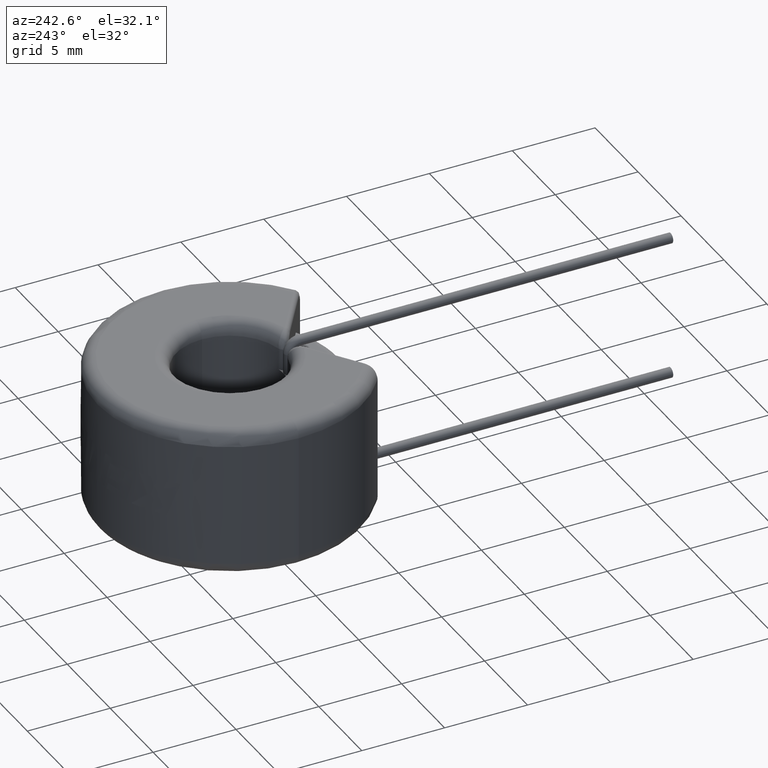
[diagram: clean part render]
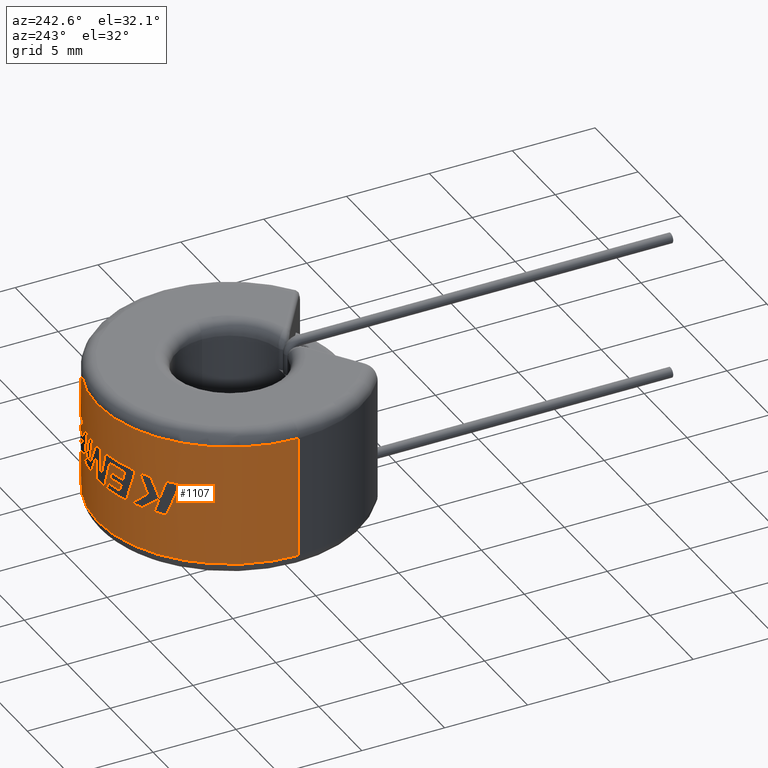
[diagram: same view with one face highlighted and labeled with its STEP entity id]
A machine part, auxiliary view. The second image highlights one B-rep face of the part: STEP entity #1107.
In plain terms, the highlighted cylindrical surface (partial cylindrical patch) has radius 8 mm, axis along (-0, -0, -1).
Its self-contained STEP definition (entity closure, byte-faithful):
#10 = ORIENTED_EDGE ( 'NONE', *, *, #384, .F. ) ;
#18 = B_SPLINE_CURVE_WITH_KNOTS ( 'NONE', 3,
 ( #2323, #1382, #670, #1670 ),
 .UNSPECIFIED., .F., .F.,
 ( 4, 4 ),
 ( 0.0000000000000000000, 1.000000000000000000 ),
 .UNSPECIFIED. ) ;
#27 = CARTESIAN_POINT ( 'NONE',  ( -0.6801237116084023482, 7.976154874691993690, 0.4359918721710264178 ) ) ;
#33 = CARTESIAN_POINT ( 'NONE',  ( -2.064441638046536909, 7.730593953373420923, -0.6643228252256486721 ) ) ;
#38 = B_SPLINE_CURVE_WITH_KNOTS ( 'NONE', 3,
 ( #2255, #2947, #1673, #677 ),
 .UNSPECIFIED., .F., .F.,
 ( 4, 4 ),
 ( 0.0000000000000000000, 1.000000000000000000 ),
 .UNSPECIFIED. ) ;
#45 = CARTESIAN_POINT ( 'NONE',  ( -1.743370544399130528, 7.817880100366698670, -0.6642675176836594364 ) ) ;
#66 = EDGE_CURVE ( 'NONE', #3014, #1181, #3132, .T. ) ;
#70 = CARTESIAN_POINT ( 'NONE',  ( -0.4210256855646497542, 7.990415484656526068, 1.072590236327437108 ) ) ;
#79 = ORIENTED_EDGE ( 'NONE', *, *, #4039, .F. ) ;
#84 = CARTESIAN_POINT ( 'NONE',  ( -0.9712122813385472009, 7.942339008945468848, -1.072616702577573244 ) ) ;
#93 = CARTESIAN_POINT ( 'NONE',  ( -0.4971932119055124111, 7.989644157169951022, -0.2006087033734176850 ) ) ;
#95 = CARTESIAN_POINT ( 'NONE',  ( 1.774497132990443538, 7.802253655266551569, -1.072546175921984979 ) ) ;
#97 = CARTESIAN_POINT ( 'NONE',  ( -2.113192612887222484E-15, 8.001500000000000057, 1.072592447715470465 ) ) ;
#103 = VERTEX_POINT ( 'NONE', #1412 ) ;
#108 = CARTESIAN_POINT ( 'NONE',  ( 0.07371837745155546129, 8.001160406507773715, 0.4599583248682252989 ) ) ;
#129 = CARTESIAN_POINT ( 'NONE',  ( 1.570700067983697767, 7.850138122217452441, -0.3575308159052169588 ) ) ;
#133 = CARTESIAN_POINT ( 'NONE',  ( 0.1508046234949111664, 8.000078763060139764, 1.072598284660388757 ) ) ;
#140 = VERTEX_POINT ( 'NONE', #429 ) ;
#158 = ORIENTED_EDGE ( 'NONE', *, *, #852, .F. ) ;
#161 = CARTESIAN_POINT ( 'NONE',  ( 2.407951547526586022, 7.630581331334950868, -0.2651256466329067196 ) ) ;
#173 = CARTESIAN_POINT ( 'NONE',  ( 0.0000000000000000000, 0.0000000000000000000, -3.699999999999999289 ) ) ;
#189 = CARTESIAN_POINT ( 'NONE',  ( -3.368712888853397924, 7.260722665219213390, -1.072592447715352559 ) ) ;
#190 = ORIENTED_EDGE ( 'NONE', *, *, #1081, .T. ) ;
#201 = CARTESIAN_POINT ( 'NONE',  ( -2.293664122963854357, 7.665709817981610996, 0.1312463116441359712 ) ) ;
#207 = ORIENTED_EDGE ( 'NONE', *, *, #2719, .F. ) ;
#219 = CARTESIAN_POINT ( 'NONE',  ( 0.8337195419124950879, 7.957946592152596921, -1.072561070023339891 ) ) ;
#220 = CARTESIAN_POINT ( 'NONE',  ( 2.860370958073259029, 7.482760784891382855, -0.6632738994053052339 ) ) ;
#229 = CARTESIAN_POINT ( 'NONE',  ( -5.476237842978441961, 5.833936940286556627, 1.072352097121872294 ) ) ;
#234 = B_SPLINE_CURVE_WITH_KNOTS ( 'NONE', 3,
 ( #1598, #2931, #3254, #1322 ),
 .UNSPECIFIED., .F., .F.,
 ( 4, 4 ),
 ( 0.0000000000000000000, 1.000000000000000000 ),
 .UNSPECIFIED. ) ;
#253 = VERTEX_POINT ( 'NONE', #3048 ) ;
#255 = B_SPLINE_CURVE_WITH_KNOTS ( 'NONE', 3,
 ( #3075, #3392, #2761, #2119 ),
 .UNSPECIFIED., .F., .F.,
 ( 4, 4 ),
 ( 0.0000000000000000000, 1.000000000000000000 ),
 .UNSPECIFIED. ) ;
#260 = ORIENTED_EDGE ( 'NONE', *, *, #1544, .F. ) ;
#268 = B_SPLINE_CURVE_WITH_KNOTS ( 'NONE', 3,
 ( #2307, #2275, #2609, #1065 ),
 .UNSPECIFIED., .F., .F.,
 ( 4, 4 ),
 ( 0.0000000000000000000, 1.000000000000000000 ),
 .UNSPECIFIED. ) ;
#283 = FACE_BOUND ( 'NONE', #1495, .T. ) ;
#286 = B_SPLINE_CURVE_WITH_KNOTS ( 'NONE', 3,
 ( #3537, #3828, #1277, #597 ),
 .UNSPECIFIED., .F., .F.,
 ( 4, 4 ),
 ( 0.0000000000000000000, 1.000000000000000000 ),
 .UNSPECIFIED. ) ;
#302 = ORIENTED_EDGE ( 'NONE', *, *, #4208, .F. ) ;
#312 = CARTESIAN_POINT ( 'NONE',  ( 3.029596591651236626, 7.414701497711397415, -0.2651917170684963132 ) ) ;
#316 = B_SPLINE_CURVE_WITH_KNOTS ( 'NONE', 3,
 ( #2537, #740, #4064, #2019 ),
 .UNSPECIFIED., .F., .F.,
 ( 4, 4 ),
 ( 0.0000000000000000000, 1.000000000000000000 ),
 .UNSPECIFIED. ) ;
#322 = CARTESIAN_POINT ( 'NONE',  ( -2.180533039818360663, 7.698654284913418522, -0.2653223298650653761 ) ) ;
#340 = CARTESIAN_POINT ( 'NONE',  ( 2.524063211080216806, 7.592964307171568450, -0.6641964339651863503 ) ) ;
#352 = B_SPLINE_CURVE_WITH_KNOTS ( 'NONE', 3,
 ( #2503, #3184, #1242, #1909 ),
 .UNSPECIFIED., .F., .F.,
 ( 4, 4 ),
 ( 0.0000000000000000000, 1.000000000000000000 ),
 .UNSPECIFIED. ) ;
#355 = CARTESIAN_POINT ( 'NONE',  ( -3.895260686644414605, 6.989345184696227342, -0.09222926475559270476 ) ) ;
#356 = CARTESIAN_POINT ( 'NONE',  ( -3.412356151512896396, 7.237390931060383892, 1.072726381455791023 ) ) ;
#366 = EDGE_CURVE ( 'NONE', #2612, #2047, #2506, .T. ) ;
#369 = CARTESIAN_POINT ( 'NONE',  ( 3.661449620607466482, 7.114617948942053793, 1.072705474585700536 ) ) ;
#376 = CARTESIAN_POINT ( 'NONE',  ( 2.721953484520333699, 7.533075270858247130, -0.2651917170684963132 ) ) ;
#378 = VERTEX_POINT ( 'NONE', #3779 ) ;
#382 = CARTESIAN_POINT ( 'NONE',  ( 2.486882010572831980, 7.615176470977394807, 0.6643914481921986415 ) ) ;
#384 = EDGE_CURVE ( 'NONE', #447, #1501, #3510, .T. ) ;
#397 = CARTESIAN_POINT ( 'NONE',  ( 3.730090888569194796, 7.084902461825878461, -0.6604191493042311789 ) ) ;
#400 = VERTEX_POINT ( 'NONE', #3536 ) ;
#403 = EDGE_CURVE ( 'NONE', #772, #3248, #3444, .T. ) ;
#406 = CARTESIAN_POINT ( 'NONE',  ( 2.824486904824376587, 7.496517094165404238, 0.6643914481921986415 ) ) ;
#421 = CARTESIAN_POINT ( 'NONE',  ( 4.973677091792798599, 6.274919447855855203, -0.6583815827780724605 ) ) ;
#429 = CARTESIAN_POINT ( 'NONE',  ( 3.328479441635595837, 7.276347057656356476, -0.2651917170684963132 ) ) ;
#436 = CARTESIAN_POINT ( 'NONE',  ( -5.282287338500848861, 6.018025177417220206, 1.072592447715470465 ) ) ;
#447 = VERTEX_POINT ( 'NONE', #340 ) ;
#451 = CARTESIAN_POINT ( 'NONE',  ( -5.476237842978441961, 5.833936940286556627, 1.072352097121872294 ) ) ;
#452 = ORIENTED_EDGE ( 'NONE', *, *, #1834, .F. ) ;
#479 = CARTESIAN_POINT ( 'NONE',  ( -0.4210256855646497542, 7.990415484656526068, 1.072590236327437108 ) ) ;
#481 = CARTESIAN_POINT ( 'NONE',  ( 0.05027692271271197444, 8.003000000000000114, 1.072592447715470465 ) ) ;
#485 = CARTESIAN_POINT ( 'NONE',  ( -5.078706757574605213, 6.191147021517003246, -0.3127150373445109488 ) ) ;
#517 = EDGE_CURVE ( 'NONE', #3916, #1444, #1256, .T. ) ;
#519 = DIRECTION ( 'NONE',  ( 1.000000000000000000, 0.0000000000000000000, 0.0000000000000000000 ) ) ;
#525 = CARTESIAN_POINT ( 'NONE',  ( -5.078617509342840286, 6.190866720929331102, 1.072592447715470465 ) ) ;
#529 = CARTESIAN_POINT ( 'NONE',  ( 5.476306915583020185, 5.833872069990692744, -1.072592447715462693 ) ) ;
#540 = B_SPLINE_CURVE_WITH_KNOTS ( 'NONE', 3,
 ( #3466, #2834, #1948, #4193 ),
 .UNSPECIFIED., .F., .F.,
 ( 4, 4 ),
 ( 0.0000000000000000000, 1.000000000000000000 ),
 .UNSPECIFIED. ) ;
#543 = CARTESIAN_POINT ( 'NONE',  ( -1.373149902420378821, 7.882795287961448238, 0.1312726931427832811 ) ) ;
#550 = ORIENTED_EDGE ( 'NONE', *, *, #4149, .F. ) ;
#555 = CARTESIAN_POINT ( 'NONE',  ( -1.297818128279534688, 7.897160402460872142, -0.1330730997002278759 ) ) ;
#563 = DIRECTION ( 'NONE',  ( 1.000000000000000000, 0.0000000000000000000, 0.0000000000000000000 ) ) ;
#565 = ORIENTED_EDGE ( 'NONE', *, *, #1203, .F. ) ;
#568 = B_SPLINE_CURVE_WITH_KNOTS ( 'NONE', 3,
 ( #1878, #1205, #2467, #3468 ),
 .UNSPECIFIED., .F., .F.,
 ( 4, 4 ),
 ( 0.0000000000000000000, 1.000000000000000000 ),
 .UNSPECIFIED. ) ;
#572 = CARTESIAN_POINT ( 'NONE',  ( -2.344688477282884431, 7.652009911330433845, 0.3090283290455112519 ) ) ;
#585 = B_SPLINE_CURVE_WITH_KNOTS ( 'NONE', 3,
 ( #3566, #2615, #3581, #1656 ),
 .UNSPECIFIED., .F., .F.,
 ( 4, 4 ),
 ( 0.0000000000000000000, 1.000000000000000000 ),
 .UNSPECIFIED. ) ;
#595 = CARTESIAN_POINT ( 'NONE',  ( -2.555841134051170194, 7.582326700080542103, -1.072662743710084632 ) ) ;
#597 = CARTESIAN_POINT ( 'NONE',  ( -1.256510396775138982, 7.902226511340423087, 0.6644377228276618919 ) ) ;
#598 = CARTESIAN_POINT ( 'NONE',  ( 1.163836292435297848, 7.916406211074641597, -0.8463309253471541505 ) ) ;
#613 = CARTESIAN_POINT ( 'NONE',  ( -2.772511723701645447, 7.510881552932747063, -0.3205386220524558682 ) ) ;
#619 = ORIENTED_EDGE ( 'NONE', *, *, #3005, .F. ) ;
#624 = ORIENTED_EDGE ( 'NONE', *, *, #1752, .F. ) ;
#631 = CARTESIAN_POINT ( 'NONE',  ( -3.895260686644414605, 6.989345184696227342, -0.09222926475559270476 ) ) ;
#646 = EDGE_CURVE ( 'NONE', #1137, #1922, #4106, .T. ) ;
#653 = CARTESIAN_POINT ( 'NONE',  ( -2.445561227911127400, 7.618610922212548431, 0.6644035914972871160 ) ) ;
#654 = VERTEX_POINT ( 'NONE', #2378 ) ;
#663 = VERTEX_POINT ( 'NONE', #3754 ) ;
#670 = CARTESIAN_POINT ( 'NONE',  ( -3.737468001689347563, 7.078989097120000018, 0.2960743297346108971 ) ) ;
#672 = B_SPLINE_CURVE_WITH_KNOTS ( 'NONE', 3,
 ( #595, #613, #2695, #848 ),
 .UNSPECIFIED., .F., .F.,
 ( 4, 4 ),
 ( 0.0000000000000000000, 1.000000000000000000 ),
 .UNSPECIFIED. ) ;
#676 = CARTESIAN_POINT ( 'NONE',  ( 0.8337195419124950879, 7.957946592152596921, -1.072561070023339891 ) ) ;
#677 = CARTESIAN_POINT ( 'NONE',  ( -4.064991875553961798, 6.892012979195994760, 1.072761833733665515 ) ) ;
#679 = CARTESIAN_POINT ( 'NONE',  ( -0.8622882428212039763, 7.954901710228647005, 1.072570777087549887 ) ) ;
#688 = CARTESIAN_POINT ( 'NONE',  ( 0.05205626573263418683, 8.000000000000000000, -1.072592447715506880 ) ) ;
#701 = B_SPLINE_CURVE_WITH_KNOTS ( 'NONE', 3,
 ( #2738, #189, #2182, #2474 ),
 .UNSPECIFIED., .F., .F.,
 ( 4, 4 ),
 ( 0.0000000000000000000, 1.000000000000000000 ),
 .UNSPECIFIED. ) ;
#702 = DIRECTION ( 'NONE',  ( -0.0000000000000000000, -0.0000000000000000000, -1.000000000000000000 ) ) ;
#713 = ORIENTED_EDGE ( 'NONE', *, *, #2475, .F. ) ;
#719 = CARTESIAN_POINT ( 'NONE',  ( 5.169748173391445434, 6.114391360897657002, -0.6583660403194177002 ) ) ;
#722 = VERTEX_POINT ( 'NONE', #201 ) ;
#736 = CARTESIAN_POINT ( 'NONE',  ( 3.292760849809325041, 7.320968663726097780, -1.072592447715432273 ) ) ;
#740 = CARTESIAN_POINT ( 'NONE',  ( 1.970959931675963395, 7.776963484191568021, 1.072592447715470465 ) ) ;
#741 = FACE_BOUND ( 'NONE', #785, .T. ) ;
#767 = ORIENTED_EDGE ( 'NONE', *, *, #3126, .F. ) ;
#771 = EDGE_LOOP ( 'NONE', ( #452, #1082, #1912, #1224, #3117, #2795, #2709, #3353, #3359, #158, #767 ) ) ;
#772 = VERTEX_POINT ( 'NONE', #1165 ) ;
#785 = EDGE_LOOP ( 'NONE', ( #1086, #2280, #2743, #3871, #10, #2101, #3351, #2687, #2660, #2057, #879, #260, #3555, #624, #938, #2662, #619 ) ) ;
#787 = CARTESIAN_POINT ( 'NONE',  ( -2.064441638046536909, 7.730593953373420923, -0.6643228252256486721 ) ) ;
#819 = VERTEX_POINT ( 'NONE', #229 ) ;
#823 = CARTESIAN_POINT ( 'NONE',  ( 2.485695010576913777, 7.607298094260091403, -0.5311944179830225821 ) ) ;
#827 = VERTEX_POINT ( 'NONE', #2561 ) ;
#838 = B_SPLINE_CURVE_WITH_KNOTS ( 'NONE', 3,
 ( #1156, #3024, #2715, #1380 ),
 .UNSPECIFIED., .F., .F.,
 ( 4, 4 ),
 ( 0.0000000000000000000, 1.000000000000000000 ),
 .UNSPECIFIED. ) ;
#848 = CARTESIAN_POINT ( 'NONE',  ( -3.173074754855873980, 7.345447473708527575, 1.072499958012197885 ) ) ;
#852 = EDGE_CURVE ( 'NONE', #2855, #3093, #234, .T. ) ;
#858 = CARTESIAN_POINT ( 'NONE',  ( -4.511451079463641989, 6.608389428695683243, -0.1582128591891508451 ) ) ;
#879 = ORIENTED_EDGE ( 'NONE', *, *, #517, .F. ) ;
#886 = EDGE_CURVE ( 'NONE', #3881, #2354, #2534, .T. ) ;
#898 = CARTESIAN_POINT ( 'NONE',  ( 0.6127338063971743409, 7.978004733265696480, 1.072607765960916115 ) ) ;
#900 = CARTESIAN_POINT ( 'NONE',  ( 1.623450805039152067, 7.839439138227093373, 0.3575308159051316381 ) ) ;
#920 = CARTESIAN_POINT ( 'NONE',  ( -2.893682706992777742, 7.459933149083743942, -1.072737299245327902 ) ) ;
#922 = CARTESIAN_POINT ( 'NONE',  ( 1.157803312104688676, 7.917290806190581343, 1.072621833848927952 ) ) ;
#925 = CARTESIAN_POINT ( 'NONE',  ( 1.163836292435297848, 7.916406211074641597, -0.8463309253471541505 ) ) ;
#934 = ORIENTED_EDGE ( 'NONE', *, *, #1340, .T. ) ;
#938 = ORIENTED_EDGE ( 'NONE', *, *, #3263, .T. ) ;
#962 = VERTEX_POINT ( 'NONE', #4113 ) ;
#977 = B_SPLINE_CURVE_WITH_KNOTS ( 'NONE', 3,
 ( #3620, #2653, #3636, #3939 ),
 .UNSPECIFIED., .F., .F.,
 ( 4, 4 ),
 ( 0.0000000000000000000, 1.000000000000000000 ),
 .UNSPECIFIED. ) ;
#989 = ORIENTED_EDGE ( 'NONE', *, *, #3997, .F. ) ;
#1005 = B_SPLINE_CURVE_WITH_KNOTS ( 'NONE', 3,
 ( #479, #4066, #3770, #3389 ),
 .UNSPECIFIED., .F., .F.,
 ( 4, 4 ),
 ( 0.0000000000000000000, 0.7363515796571900029 ),
 .UNSPECIFIED. ) ;
#1011 = CARTESIAN_POINT ( 'NONE',  ( -4.511451079463641989, 6.608389428695683243, -0.1582128591891508451 ) ) ;
#1026 = CARTESIAN_POINT ( 'NONE',  ( 3.507013961814958947, 7.191999368766832212, -0.6614316899622286750 ) ) ;
#1034 = B_SPLINE_CURVE_WITH_KNOTS ( 'NONE', 3,
 ( #4205, #3231, #1298, #322 ),
 .UNSPECIFIED., .F., .F.,
 ( 4, 4 ),
 ( 0.0000000000000000000, 1.000000000000000000 ),
 .UNSPECIFIED. ) ;
#1051 = CARTESIAN_POINT ( 'NONE',  ( 4.452119497614524413, 6.679632337805506914, -1.072592447715432273 ) ) ;
#1058 = CARTESIAN_POINT ( 'NONE',  ( 3.215492179340174062, 7.326978360630375775, 0.1314012205837849223 ) ) ;
#1061 = ORIENTED_EDGE ( 'NONE', *, *, #3761, .F. ) ;
#1065 = CARTESIAN_POINT ( 'NONE',  ( 0.6127338063971743409, 7.978004733265696480, 1.072607765960916115 ) ) ;
#1067 = CARTESIAN_POINT ( 'NONE',  ( 4.991727824941910363, 6.286613516910136923, -1.072592447715432273 ) ) ;
#1072 = CARTESIAN_POINT ( 'NONE',  ( 1.157803312104688676, 7.917290806190581343, 1.072621833848927952 ) ) ;
#1081 = EDGE_CURVE ( 'NONE', #1324, #663, #2273, .T. ) ;
#1082 = ORIENTED_EDGE ( 'NONE', *, *, #1101, .T. ) ;
#1086 = ORIENTED_EDGE ( 'NONE', *, *, #2882, .F. ) ;
#1093 = CARTESIAN_POINT ( 'NONE',  ( -0.3853934973680183673, 7.993794897276850442, 0.4359918721710193679 ) ) ;
#1101 = EDGE_CURVE ( 'NONE', #103, #4217, #540, .T. ) ;
#1107 = ADVANCED_FACE ( 'NONE', ( #2725, #283, #741, #1409 ), #1316, .T. ) ;
#1116 = CARTESIAN_POINT ( 'NONE',  ( 2.915994245259669437, 7.460024991791626370, 0.1313076335298329622 ) ) ;
#1131 = VERTEX_POINT ( 'NONE', #922 ) ;
#1137 = VERTEX_POINT ( 'NONE', #1253 ) ;
#1156 = CARTESIAN_POINT ( 'NONE',  ( 0.6127338063971743409, 7.978004733265696480, 1.072607765960916115 ) ) ;
#1161 = EDGE_CURVE ( 'NONE', #1501, #1438, #1863, .T. ) ;
#1165 = CARTESIAN_POINT ( 'NONE',  ( -1.087173427263111058, 7.927298162801107217, -0.6642947640332093062 ) ) ;
#1166 = CARTESIAN_POINT ( 'NONE',  ( -0.2527305113524106472, 8.000000000000000000, -1.072592447715506880 ) ) ;
#1181 = VERTEX_POINT ( 'NONE', #3778 ) ;
#1188 = CARTESIAN_POINT ( 'NONE',  ( 2.032911500267610361, 7.738945211318130291, -1.072538615776349014 ) ) ;
#1202 = CARTESIAN_POINT ( 'NONE',  ( -3.255128284551146667, 7.321345398681610384, -0.7191471995214996360 ) ) ;
#1203 = EDGE_CURVE ( 'NONE', #3208, #3405, #3479, .T. ) ;
#1205 = CARTESIAN_POINT ( 'NONE',  ( 5.397823638726764628, 5.908842161643588220, -0.7964311478123297094 ) ) ;
#1210 = CARTESIAN_POINT ( 'NONE',  ( -2.555841134051170194, 7.582326700080542103, -1.072662743710084632 ) ) ;
#1214 = CARTESIAN_POINT ( 'NONE',  ( 0.3275784478912423525, 8.000321934888759756, -0.05089401335543937421 ) ) ;
#1215 = EDGE_CURVE ( 'NONE', #2354, #3345, #4168, .T. ) ;
#1224 = ORIENTED_EDGE ( 'NONE', *, *, #1502, .F. ) ;
#1235 = CARTESIAN_POINT ( 'NONE',  ( -2.041100581969992334, 7.754235321830279304, -1.072592447715485120 ) ) ;
#1242 = CARTESIAN_POINT ( 'NONE',  ( -4.338039743121873570, 6.726093363118090807, -0.7676625222797507364 ) ) ;
#1253 = CARTESIAN_POINT ( 'NONE',  ( -2.180533039818360663, 7.698654284913418522, -0.2653223298650653761 ) ) ;
#1256 = B_SPLINE_CURVE_WITH_KNOTS ( 'NONE', 3,
 ( #3000, #406, #382, #1389 ),
 .UNSPECIFIED., .F., .F.,
 ( 4, 4 ),
 ( 0.0000000000000000000, 1.000000000000000000 ),
 .UNSPECIFIED. ) ;
#1271 = CARTESIAN_POINT ( 'NONE',  ( 4.272865543308272507, 6.765103213330429632, 1.072736843435582177 ) ) ;
#1273 = VERTEX_POINT ( 'NONE', #3249 ) ;
#1277 = CARTESIAN_POINT ( 'NONE',  ( -1.090924302169648197, 7.930072393146923027, 0.08544899748538976880 ) ) ;
#1279 = B_SPLINE_CURVE_WITH_KNOTS ( 'NONE', 3,
 ( #1188, #3112, #900, #1593 ),
 .UNSPECIFIED., .F., .F.,
 ( 4, 4 ),
 ( 0.0000000000000000000, 1.000000000000000000 ),
 .UNSPECIFIED. ) ;
#1298 = CARTESIAN_POINT ( 'NONE',  ( -1.878186254511453601, 7.785840722944312731, -0.2652634663130049031 ) ) ;
#1312 = B_SPLINE_CURVE_WITH_KNOTS ( 'NONE', 3,
 ( #33, #45, #3335, #2417 ),
 .UNSPECIFIED., .F., .F.,
 ( 4, 4 ),
 ( 0.0000000000000000000, 1.000000000000000000 ),
 .UNSPECIFIED. ) ;
#1316 = CYLINDRICAL_SURFACE ( 'NONE', #1408, 8.000000000000000000 ) ;
#1322 = CARTESIAN_POINT ( 'NONE',  ( -4.532851134413411920, 6.593728995872968568, -0.09214177772560618040 ) ) ;
#1323 = CARTESIAN_POINT ( 'NONE',  ( 4.159464431272449580, 6.835411994908524136, -0.6582591171889911053 ) ) ;
#1324 = VERTEX_POINT ( 'NONE', #2621 ) ;
#1333 = ORIENTED_EDGE ( 'NONE', *, *, #66, .F. ) ;
#1340 = EDGE_CURVE ( 'NONE', #3804, #3645, #3806, .T. ) ;
#1355 = CARTESIAN_POINT ( 'NONE',  ( 3.947790748144502704, 6.965943521120307125, -0.6594081372731369628 ) ) ;
#1356 = CARTESIAN_POINT ( 'NONE',  ( 3.507013961814958947, 7.191999368766832212, -0.6614316899622286750 ) ) ;
#1376 = EDGE_CURVE ( 'NONE', #722, #2656, #2854, .T. ) ;
#1380 = CARTESIAN_POINT ( 'NONE',  ( 1.157803312104688676, 7.917290806190581343, 1.072621833848927952 ) ) ;
#1382 = CARTESIAN_POINT ( 'NONE',  ( -3.576408852467553690, 7.161707437531032561, 0.6843333887250429015 ) ) ;
#1389 = CARTESIAN_POINT ( 'NONE',  ( 2.142650734834194104, 7.709283362826103492, 0.6644482304444168097 ) ) ;
#1408 = AXIS2_PLACEMENT_3D ( 'NONE', #2224, #3553, #2567 ) ;
#1409 = FACE_OUTER_BOUND ( 'NONE', #2281, .T. ) ;
#1412 = CARTESIAN_POINT ( 'NONE',  ( -4.859822900790925715, 6.356581066237645850, -1.072775976785200314 ) ) ;
#1430 = EDGE_CURVE ( 'NONE', #1704, #1744, #568, .T. ) ;
#1434 = CARTESIAN_POINT ( 'NONE',  ( 3.291165848882553036, 7.295063276019087439, -0.1330252668690571072 ) ) ;
#1437 = ORIENTED_EDGE ( 'NONE', *, *, #2633, .T. ) ;
#1438 = VERTEX_POINT ( 'NONE', #1514 ) ;
#1444 = VERTEX_POINT ( 'NONE', #1833 ) ;
#1449 = CARTESIAN_POINT ( 'NONE',  ( 3.328479441635595837, 7.276347057656356476, -0.2651917170684963132 ) ) ;
#1488 = CARTESIAN_POINT ( 'NONE',  ( -1.259888897926941143, 7.901688565005892784, -0.2652953831288911712 ) ) ;
#1495 = EDGE_LOOP ( 'NONE', ( #565, #2921, #3907, #302, #3864, #2388, #2941, #2970, #1333, #2410, #2195, #3595, #2252, #3301, #207, #2181, #1061, #3258, #3056, #79, #713, #989, #934, #2436, #3670 ) ) ;
#1501 = VERTEX_POINT ( 'NONE', #1356 ) ;
#1502 = EDGE_CURVE ( 'NONE', #3665, #3956, #3185, .T. ) ;
#1508 = CARTESIAN_POINT ( 'NONE',  ( -1.335576918507004995, 7.890862349010929755, -0.0008827330874449789040 ) ) ;
#1514 = CARTESIAN_POINT ( 'NONE',  ( 4.159464431272449580, 6.835411994908524136, -0.6582591171889911053 ) ) ;
#1533 = CARTESIAN_POINT ( 'NONE',  ( -1.509390639620157071, 7.875023613238607112, -1.072592447715485120 ) ) ;
#1544 = EDGE_CURVE ( 'NONE', #962, #3916, #3838, .T. ) ;
#1553 = VERTEX_POINT ( 'NONE', #653 ) ;
#1576 = EDGE_CURVE ( 'NONE', #3345, #3459, #268, .T. ) ;
#1582 = B_SPLINE_CURVE_WITH_KNOTS ( 'NONE', 3,
 ( #2628, #3568, #3242, #369 ),
 .UNSPECIFIED., .F., .F.,
 ( 4, 4 ),
 ( 0.0000000000000000000, 1.000000000000000000 ),
 .UNSPECIFIED. ) ;
#1593 = CARTESIAN_POINT ( 'NONE',  ( 1.415943937716766188, 7.875220947309045982, 1.072628754729407774 ) ) ;
#1598 = CARTESIAN_POINT ( 'NONE',  ( -4.866318965182607315, 6.351609339676220323, 1.072408793068455379 ) ) ;
#1603 = EDGE_CURVE ( 'NONE', #3665, #2047, #701, .T. ) ;
#1621 = CARTESIAN_POINT ( 'NONE',  ( 3.036812739355210677, 7.402821778748253756, 1.072678703455610894 ) ) ;
#1629 = CARTESIAN_POINT ( 'NONE',  ( 0.1041125313392672613, 7.999491886090027037, -1.072592447715506880 ) ) ;
#1638 = CARTESIAN_POINT ( 'NONE',  ( -3.173074754855873980, 7.345447473708527575, 1.072499958012197885 ) ) ;
#1639 = B_SPLINE_CURVE_WITH_KNOTS ( 'NONE', 3,
 ( #1904, #3533, #2915, #3847 ),
 .UNSPECIFIED., .F., .F.,
 ( 4, 4 ),
 ( 0.0000000000000000000, 1.000000000000000000 ),
 .UNSPECIFIED. ) ;
#1644 = CARTESIAN_POINT ( 'NONE',  ( 5.357708777453840554, 5.942975457822458729, -0.6581228434418439077 ) ) ;
#1651 = DIRECTION ( 'NONE',  ( -0.0000000000000000000, -0.0000000000000000000, -1.000000000000000000 ) ) ;
#1656 = CARTESIAN_POINT ( 'NONE',  ( 2.294839345715621093, 7.665358078791731700, 0.1313076335298328512 ) ) ;
#1662 = CARTESIAN_POINT ( 'NONE',  ( -4.859822900790925715, 6.356581066237645850, -1.072775976785200314 ) ) ;
#1664 = CARTESIAN_POINT ( 'NONE',  ( -3.599537740570145861, 7.146140931948095520, -1.072780200198578893 ) ) ;
#1670 = CARTESIAN_POINT ( 'NONE',  ( -3.895260686644414605, 6.989345184696227342, -0.09222926475559270476 ) ) ;
#1673 = CARTESIAN_POINT ( 'NONE',  ( -4.227551312311603304, 6.797884889589320245, 0.6687264320548423902 ) ) ;
#1701 = EDGE_CURVE ( 'NONE', #1438, #1733, #1582, .T. ) ;
#1704 = VERTEX_POINT ( 'NONE', #1644 ) ;
#1709 = CARTESIAN_POINT ( 'NONE',  ( 1.463972212756161184, 7.871332858038870839, -1.072592447715529307 ) ) ;
#1717 = CARTESIAN_POINT ( 'NONE',  ( 2.673083906264648757, 7.569245577953290116, -1.072592447715432051 ) ) ;
#1733 = VERTEX_POINT ( 'NONE', #2773 ) ;
#1744 = VERTEX_POINT ( 'NONE', #529 ) ;
#1752 = EDGE_CURVE ( 'NONE', #378, #3813, #1279, .T. ) ;
#1790 = CARTESIAN_POINT ( 'NONE',  ( -2.142134259533186036, 7.711088183361892945, -0.3982648167699028852 ) ) ;
#1814 = CARTESIAN_POINT ( 'NONE',  ( 2.524063211080216806, 7.592964307171568450, -0.6641964339651863503 ) ) ;
#1833 = CARTESIAN_POINT ( 'NONE',  ( 2.142650734834194104, 7.709283362826103492, 0.6644482304444168097 ) ) ;
#1834 = EDGE_CURVE ( 'NONE', #103, #819, #1993, .T. ) ;
#1843 = CARTESIAN_POINT ( 'NONE',  ( -3.588940541360326808, 7.161752953428407231, -0.3923446267016335032 ) ) ;
#1863 = B_SPLINE_CURVE_WITH_KNOTS ( 'NONE', 3,
 ( #3517, #397, #1355, #1323 ),
 .UNSPECIFIED., .F., .F.,
 ( 4, 4 ),
 ( 0.0000000000000000000, 1.000000000000000000 ),
 .UNSPECIFIED. ) ;
#1878 = CARTESIAN_POINT ( 'NONE',  ( 5.357708777453840554, 5.942975457822458729, -0.6581228434418439077 ) ) ;
#1904 = CARTESIAN_POINT ( 'NONE',  ( 4.272865543308272507, 6.765103213330429632, 1.072736843435582177 ) ) ;
#1909 = CARTESIAN_POINT ( 'NONE',  ( -4.249084159012854300, 6.780065303960141954, -1.072735186844663291 ) ) ;
#1912 = ORIENTED_EDGE ( 'NONE', *, *, #3481, .F. ) ;
#1922 = VERTEX_POINT ( 'NONE', #3274 ) ;
#1925 = CARTESIAN_POINT ( 'NONE',  ( 3.215492179340174062, 7.326978360630375775, 0.1314012205837849223 ) ) ;
#1928 = CARTESIAN_POINT ( 'NONE',  ( -2.293664122963854357, 7.665709817981610996, 0.1312463116441359712 ) ) ;
#1930 = CARTESIAN_POINT ( 'NONE',  ( -1.991663625187441555, 7.757628894122412966, 0.1313076335253294258 ) ) ;
#1947 = CARTESIAN_POINT ( 'NONE',  ( -4.532851134413411920, 6.593728995872968568, -0.09214177772560618040 ) ) ;
#1948 = CARTESIAN_POINT ( 'NONE',  ( -4.457864975913431671, 6.647467044891716803, -1.072592447715418285 ) ) ;
#1949 = CARTESIAN_POINT ( 'NONE',  ( -2.439283676930350087, 7.664031251276792744, 1.072592447715470465 ) ) ;
#1951 = CARTESIAN_POINT ( 'NONE',  ( 0.07371837745155546129, 8.001160406507773715, 0.4599583248682252989 ) ) ;
#1953 = CARTESIAN_POINT ( 'NONE',  ( -4.866318965182607315, 6.351609339676220323, 1.072408793068455379 ) ) ;
#1964 = EDGE_CURVE ( 'NONE', #3556, #3014, #3853, .T. ) ;
#1970 = CARTESIAN_POINT ( 'NONE',  ( 3.152371128682071255, 7.354356410113232378, 0.6643914481921986415 ) ) ;
#1982 = CARTESIAN_POINT ( 'NONE',  ( 1.149725607890550005, 7.923334312543254043, -1.072592447715529307 ) ) ;
#1993 = B_SPLINE_CURVE_WITH_KNOTS ( 'NONE', 3,
 ( #1662, #485, #2402, #451 ),
 .UNSPECIFIED., .F., .F.,
 ( 4, 4 ),
 ( 0.0000000000000000000, 1.000000000000000000 ),
 .UNSPECIFIED. ) ;
#2019 = CARTESIAN_POINT ( 'NONE',  ( 3.036812739355210677, 7.402821778748253756, 1.072678703455610894 ) ) ;
#2020 = B_SPLINE_CURVE_WITH_KNOTS ( 'NONE', 3,
 ( #2367, #421, #719, #2355 ),
 .UNSPECIFIED., .F., .F.,
 ( 4, 4 ),
 ( 0.0000000000000000000, 1.000000000000000000 ),
 .UNSPECIFIED. ) ;
#2025 = CARTESIAN_POINT ( 'NONE',  ( 0.1287204928497809597, 8.002012022293371274, -0.5617432305354302935 ) ) ;
#2043 = CARTESIAN_POINT ( 'NONE',  ( 5.476306915583020185, 5.833872069990692744, -1.072592447715462693 ) ) ;
#2047 = VERTEX_POINT ( 'NONE', #920 ) ;
#2048 = CARTESIAN_POINT ( 'NONE',  ( -2.103431693506095268, 7.721735249812914148, -0.5312661672267786628 ) ) ;
#2057 = ORIENTED_EDGE ( 'NONE', *, *, #3875, .F. ) ;
#2064 = CARTESIAN_POINT ( 'NONE',  ( 2.294839345715621093, 7.665358078791731700, 0.1313076335298328512 ) ) ;
#2069 = B_SPLINE_CURVE_WITH_KNOTS ( 'NONE', 3,
 ( #3202, #2233, #572, #1928 ),
 .UNSPECIFIED., .F., .F.,
 ( 4, 4 ),
 ( 0.0000000000000000000, 1.000000000000000000 ),
 .UNSPECIFIED. ) ;
#2101 = ORIENTED_EDGE ( 'NONE', *, *, #3558, .F. ) ;
#2105 = CARTESIAN_POINT ( 'NONE',  ( -0.8622882428212039763, 7.954901710228647005, 1.072570777087549887 ) ) ;
#2119 = CARTESIAN_POINT ( 'NONE',  ( 4.272865543308272507, 6.765103213330429632, 1.072736843435582177 ) ) ;
#2139 = CARTESIAN_POINT ( 'NONE',  ( 2.446992404830111045, 7.619835441218133276, -0.3981930675257585039 ) ) ;
#2162 = EDGE_CURVE ( 'NONE', #3813, #962, #316, .T. ) ;
#2167 = DIRECTION ( 'NONE',  ( -0.0000000000000000000, -0.0000000000000000000, -1.000000000000000000 ) ) ;
#2177 = CARTESIAN_POINT ( 'NONE',  ( -1.048662758572285414, 7.934093205559065609, -0.8003758276942688488 ) ) ;
#2181 = ORIENTED_EDGE ( 'NONE', *, *, #646, .F. ) ;
#2182 = CARTESIAN_POINT ( 'NONE',  ( -3.133115288122034325, 7.365453736199215840, -1.072592447715352559 ) ) ;
#2184 = CARTESIAN_POINT ( 'NONE',  ( -0.3140130652816339740, 7.995336018055944294, -0.8372187431484364728 ) ) ;
#2195 = ORIENTED_EDGE ( 'NONE', *, *, #2909, .F. ) ;
#2220 = B_SPLINE_CURVE_WITH_KNOTS ( 'NONE', 3,
 ( #2064, #3043, #1116, #3362 ),
 .UNSPECIFIED., .F., .F.,
 ( 4, 4 ),
 ( 0.0000000000000000000, 1.000000000000000000 ),
 .UNSPECIFIED. ) ;
#2224 = CARTESIAN_POINT ( 'NONE',  ( 0.0000000000000000000, 0.0000000000000000000, 4.500000000000000000 ) ) ;
#2233 = CARTESIAN_POINT ( 'NONE',  ( -2.395329380969643207, 7.636309114701021805, 0.4867490245656821424 ) ) ;
#2234 = CARTESIAN_POINT ( 'NONE',  ( -1.373149902420378821, 7.882795287961448238, 0.1312726931427832811 ) ) ;
#2250 = EDGE_CURVE ( 'NONE', #3405, #400, #4215, .T. ) ;
#2252 = ORIENTED_EDGE ( 'NONE', *, *, #3698, .T. ) ;
#2255 = CARTESIAN_POINT ( 'NONE',  ( -4.532851134413411920, 6.593728995872968568, -0.09214177772560618040 ) ) ;
#2264 = CARTESIAN_POINT ( 'NONE',  ( 3.075573260386148977, 7.388545932832505159, 0.9365254478743868516 ) ) ;
#2270 = CARTESIAN_POINT ( 'NONE',  ( 0.1562027561274405563, 7.999975184232668290, -1.072591661602920743 ) ) ;
#2273 = CIRCLE ( 'NONE', #3936, 8.000000000000000000 ) ;
#2275 = CARTESIAN_POINT ( 'NONE',  ( 0.9809626972308762571, 7.944803252561456475, -0.2067400021394029952 ) ) ;
#2280 = ORIENTED_EDGE ( 'NONE', *, *, #2792, .F. ) ;
#2281 = EDGE_LOOP ( 'NONE', ( #3621, #1437, #190, #550 ) ) ;
#2304 = EDGE_CURVE ( 'NONE', #253, #2513, #2220, .T. ) ;
#2307 = CARTESIAN_POINT ( 'NONE',  ( 1.163836292435297848, 7.916406211074641597, -0.8463309253471541505 ) ) ;
#2313 = B_SPLINE_CURVE_WITH_KNOTS ( 'NONE', 3,
 ( #1072, #3715, #129, #95 ),
 .UNSPECIFIED., .F., .F.,
 ( 4, 4 ),
 ( 0.0000000000000000000, 1.000000000000000000 ),
 .UNSPECIFIED. ) ;
#2321 = CARTESIAN_POINT ( 'NONE',  ( 3.328479441635595837, 7.276347057656356476, -0.2651917170684963132 ) ) ;
#2323 = CARTESIAN_POINT ( 'NONE',  ( -3.412356151512896396, 7.237390931060383892, 1.072726381455791023 ) ) ;
#2325 = EDGE_CURVE ( 'NONE', #2513, #140, #4157, .T. ) ;
#2346 = CARTESIAN_POINT ( 'NONE',  ( 2.407951547526586022, 7.630581331334950868, -0.2651256466329067196 ) ) ;
#2352 = EDGE_CURVE ( 'NONE', #1131, #2509, #2313, .T. ) ;
#2354 = VERTEX_POINT ( 'NONE', #3054 ) ;
#2355 = CARTESIAN_POINT ( 'NONE',  ( 5.357708777453840554, 5.942975457822458729, -0.6581228434418439077 ) ) ;
#2358 = CARTESIAN_POINT ( 'NONE',  ( -5.476237842978441961, 5.833936940286556627, 1.072352097121872294 ) ) ;
#2367 = CARTESIAN_POINT ( 'NONE',  ( 4.769995312515009189, 6.424262295245175558, -0.6583971607282420591 ) ) ;
#2378 = CARTESIAN_POINT ( 'NONE',  ( -4.064991875553961798, 6.892012979195994760, 1.072761833733665515 ) ) ;
#2388 = ORIENTED_EDGE ( 'NONE', *, *, #1215, .F. ) ;
#2402 = CARTESIAN_POINT ( 'NONE',  ( -5.284203106205844769, 6.016227146525604752, 0.4023465944658159987 ) ) ;
#2410 = ORIENTED_EDGE ( 'NONE', *, *, #1964, .F. ) ;
#2417 = CARTESIAN_POINT ( 'NONE',  ( -1.087173427263111058, 7.927298162801107217, -0.6642947640332093062 ) ) ;
#2425 = CARTESIAN_POINT ( 'NONE',  ( -0.7572644789426007383, 7.965585524362696290, -1.072611448973221693 ) ) ;
#2436 = ORIENTED_EDGE ( 'NONE', *, *, #3775, .T. ) ;
#2444 = EDGE_CURVE ( 'NONE', #1181, #3881, #1005, .T. ) ;
#2450 = CARTESIAN_POINT ( 'NONE',  ( 3.152371128682071255, 7.354356410113232378, 0.6643914481921986415 ) ) ;
#2456 = VECTOR ( 'NONE', #702, 1000.000000000000000 ) ;
#2467 = CARTESIAN_POINT ( 'NONE',  ( 5.437508331311185827, 5.872343558830303678, -0.9345117977639049167 ) ) ;
#2474 = CARTESIAN_POINT ( 'NONE',  ( -2.893682706992777742, 7.459933149083743942, -1.072737299245327902 ) ) ;
#2475 = EDGE_CURVE ( 'NONE', #2741, #1553, #2613, .T. ) ;
#2498 = CARTESIAN_POINT ( 'NONE',  ( 0.5813254304206653122, 7.985895030948710449, -0.5617432305354911337 ) ) ;
#2501 = CARTESIAN_POINT ( 'NONE',  ( 3.189014719994367475, 7.348715268491253561, -0.6623520303703154255 ) ) ;
#2503 = CARTESIAN_POINT ( 'NONE',  ( -4.511451079463641989, 6.608389428695683243, -0.1582128591891508451 ) ) ;
#2506 = B_SPLINE_CURVE_WITH_KNOTS ( 'NONE', 3,
 ( #631, #1843, #1202, #3462 ),
 .UNSPECIFIED., .F., .F.,
 ( 4, 4 ),
 ( 0.0000000000000000000, 1.000000000000000000 ),
 .UNSPECIFIED. ) ;
#2508 = CARTESIAN_POINT ( 'NONE',  ( 1.774497132990443538, 7.802253655266551569, -1.072546175921984979 ) ) ;
#2509 = VERTEX_POINT ( 'NONE', #2508 ) ;
#2513 = VERTEX_POINT ( 'NONE', #1925 ) ;
#2531 = CARTESIAN_POINT ( 'NONE',  ( -1.657388291321934881, 7.870231504147456647, 1.072592447715470465 ) ) ;
#2534 = B_SPLINE_CURVE_WITH_KNOTS ( 'NONE', 3,
 ( #4042, #481, #2575, #3669 ),
 .UNSPECIFIED., .F., .F.,
 ( 4, 4 ),
 ( 0.7363515796571900029, 1.000000000000000000 ),
 .UNSPECIFIED. ) ;
#2537 = CARTESIAN_POINT ( 'NONE',  ( 1.415943937716766188, 7.875220947309045982, 1.072628754729407774 ) ) ;
#2556 = CARTESIAN_POINT ( 'NONE',  ( -1.010003761489307150, 7.939107064241698097, -0.9364841377048973570 ) ) ;
#2561 = CARTESIAN_POINT ( 'NONE',  ( -8.000000000000000000, 0.0000000000000000000, 3.699999999999999734 ) ) ;
#2567 = DIRECTION ( 'NONE',  ( -1.000000000000000000, 0.0000000000000000000, 0.0000000000000000000 ) ) ;
#2570 = CARTESIAN_POINT ( 'NONE',  ( 8.000000000000000000, 9.797174393178825657E-16, 3.699999999999999734 ) ) ;
#2575 = CARTESIAN_POINT ( 'NONE',  ( 0.1005538453197036969, 8.002526206964203581, 1.072592447715470465 ) ) ;
#2577 = CARTESIAN_POINT ( 'NONE',  ( 1.210032663757388171E-14, 8.001500000000000057, -1.072592447715525754 ) ) ;
#2597 = CARTESIAN_POINT ( 'NONE',  ( 2.524063211080216806, 7.592964307171568450, -0.6641964339651863503 ) ) ;
#2602 = CARTESIAN_POINT ( 'NONE',  ( -2.293664122963854357, 7.665709817981610996, 0.1312463116441359712 ) ) ;
#2606 = EDGE_CURVE ( 'NONE', #654, #3876, #977, .T. ) ;
#2609 = CARTESIAN_POINT ( 'NONE',  ( 0.7971245505212444238, 7.965348641850265921, 0.4329262227880340541 ) ) ;
#2612 = VERTEX_POINT ( 'NONE', #355 ) ;
#2613 = B_SPLINE_CURVE_WITH_KNOTS ( 'NONE', 3,
 ( #4154, #2887, #4141, #3164 ),
 .UNSPECIFIED., .F., .F.,
 ( 4, 4 ),
 ( 0.0000000000000000000, 1.000000000000000000 ),
 .UNSPECIFIED. ) ;
#2615 = CARTESIAN_POINT ( 'NONE',  ( 2.193739878460897685, 7.696642267281843530, 0.4866968433047605402 ) ) ;
#2621 = CARTESIAN_POINT ( 'NONE',  ( 8.000000000000000000, 9.797174393178825657E-16, -3.699999999999999289 ) ) ;
#2628 = CARTESIAN_POINT ( 'NONE',  ( 4.159464431272449580, 6.835411994908524136, -0.6582591171889911053 ) ) ;
#2633 = EDGE_CURVE ( 'NONE', #3449, #1324, #4076, .T. ) ;
#2653 = CARTESIAN_POINT ( 'NONE',  ( -3.853339012280764475, 7.018576883124962862, 1.072592447715470465 ) ) ;
#2656 = VERTEX_POINT ( 'NONE', #3580 ) ;
#2657 = EDGE_CURVE ( 'NONE', #3208, #2509, #3549, .T. ) ;
#2660 = ORIENTED_EDGE ( 'NONE', *, *, #2304, .F. ) ;
#2662 = ORIENTED_EDGE ( 'NONE', *, *, #1430, .F. ) ;
#2687 = ORIENTED_EDGE ( 'NONE', *, *, #2325, .F. ) ;
#2695 = CARTESIAN_POINT ( 'NONE',  ( -2.978277676115317352, 7.431221054966652417, 0.3945230097578821260 ) ) ;
#2709 = ORIENTED_EDGE ( 'NONE', *, *, #3397, .F. ) ;
#2715 = CARTESIAN_POINT ( 'NONE',  ( 0.9769768838272837597, 7.945247996320903283, 1.072592447715470465 ) ) ;
#2719 = EDGE_CURVE ( 'NONE', #1922, #772, #1312, .T. ) ;
#2725 = FACE_BOUND ( 'NONE', #771, .T. ) ;
#2738 = CARTESIAN_POINT ( 'NONE',  ( -3.599537740570145861, 7.146140931948095520, -1.072780200198578893 ) ) ;
#2741 = VERTEX_POINT ( 'NONE', #3687 ) ;
#2743 = ORIENTED_EDGE ( 'NONE', *, *, #1701, .F. ) ;
#2761 = CARTESIAN_POINT ( 'NONE',  ( 4.074465645237972389, 6.892156345422547403, 1.072592447715470465 ) ) ;
#2773 = CARTESIAN_POINT ( 'NONE',  ( 3.661449620607466482, 7.114617948942053793, 1.072705474585700536 ) ) ;
#2774 = DIRECTION ( 'NONE',  ( 0.0000000000000000000, 0.0000000000000000000, 1.000000000000000000 ) ) ;
#2792 = EDGE_CURVE ( 'NONE', #1733, #2840, #255, .T. ) ;
#2795 = ORIENTED_EDGE ( 'NONE', *, *, #366, .F. ) ;
#2834 = CARTESIAN_POINT ( 'NONE',  ( -4.661684082518943839, 6.506157066286256452, -1.072592447715418285 ) ) ;
#2840 = VERTEX_POINT ( 'NONE', #1271 ) ;
#2854 = B_SPLINE_CURVE_WITH_KNOTS ( 'NONE', 3,
 ( #2602, #1930, #3869, #2234 ),
 .UNSPECIFIED., .F., .F.,
 ( 4, 4 ),
 ( 0.0000000000000000000, 1.000000000000000000 ),
 .UNSPECIFIED. ) ;
#2855 = VERTEX_POINT ( 'NONE', #1953 ) ;
#2876 = B_SPLINE_CURVE_WITH_KNOTS ( 'NONE', 3,
 ( #3095, #1717, #736, #1051, #1067, #2043 ),
 .UNSPECIFIED., .F., .F.,
 ( 4, 2, 4 ),
 ( 0.0000000000000000000, 0.5000000000000000000, 1.000000000000000000 ),
 .UNSPECIFIED. ) ;
#2882 = EDGE_CURVE ( 'NONE', #2840, #3919, #1639, .T. ) ;
#2887 = CARTESIAN_POINT ( 'NONE',  ( -1.659483267157678910, 7.839675470019042081, 0.6644697200858559194 ) ) ;
#2894 = CARTESIAN_POINT ( 'NONE',  ( -3.599537740570145861, 7.146140931948095520, -1.072780200198578893 ) ) ;
#2900 = CARTESIAN_POINT ( 'NONE',  ( 0.8284135031838136820, 7.967226732966779856, -0.2067400021393965837 ) ) ;
#2905 = CARTESIAN_POINT ( 'NONE',  ( 2.407951547526586022, 7.630581331334950868, -0.2651256466329067196 ) ) ;
#2906 = CARTESIAN_POINT ( 'NONE',  ( -8.000000000000000000, 0.0000000000000000000, 4.500000000000000000 ) ) ;
#2909 = EDGE_CURVE ( 'NONE', #4075, #3556, #2930, .T. ) ;
#2915 = CARTESIAN_POINT ( 'NONE',  ( 4.611921437079922192, 6.543482873606305539, -0.1068823409265124841 ) ) ;
#2921 = ORIENTED_EDGE ( 'NONE', *, *, #2657, .T. ) ;
#2925 = CARTESIAN_POINT ( 'NONE',  ( -0.7572644789426007383, 7.965585524362696290, -1.072611448973221693 ) ) ;
#2930 = B_SPLINE_CURVE_WITH_KNOTS ( 'NONE', 3,
 ( #3507, #1949, #2531, #3873 ),
 .UNSPECIFIED., .F., .F.,
 ( 4, 4 ),
 ( 0.0000000000000000000, 1.000000000000000000 ),
 .UNSPECIFIED. ) ;
#2931 = CARTESIAN_POINT ( 'NONE',  ( -4.757651647185618948, 6.436744052252413084, 0.6843333887250508951 ) ) ;
#2941 = ORIENTED_EDGE ( 'NONE', *, *, #886, .F. ) ;
#2947 = CARTESIAN_POINT ( 'NONE',  ( -4.383397186231490217, 6.698267060407344431, 0.2804673730644156038 ) ) ;
#2957 = CARTESIAN_POINT ( 'NONE',  ( -3.927169066483962023, 6.982799985806170895, -0.7443716389592909266 ) ) ;
#2961 = B_SPLINE_CURVE_WITH_KNOTS ( 'NONE', 3,
 ( #2358, #436, #525, #3127 ),
 .UNSPECIFIED., .F., .F.,
 ( 4, 4 ),
 ( 0.0000000000000000000, 1.000000000000000000 ),
 .UNSPECIFIED. ) ;
#2969 = CARTESIAN_POINT ( 'NONE',  ( -4.231064063479774262, 6.801587564008400477, -0.4394417135236013405 ) ) ;
#2970 = ORIENTED_EDGE ( 'NONE', *, *, #2444, .F. ) ;
#2974 = CARTESIAN_POINT ( 'NONE',  ( 1.774497132990443538, 7.802253655266551569, -1.072546175921984979 ) ) ;
#3000 = CARTESIAN_POINT ( 'NONE',  ( 3.152371128682071255, 7.354356410113232378, 0.6643914481921986415 ) ) ;
#3005 = EDGE_CURVE ( 'NONE', #3919, #1704, #2020, .T. ) ;
#3014 = VERTEX_POINT ( 'NONE', #3668 ) ;
#3024 = CARTESIAN_POINT ( 'NONE',  ( 0.7951263493186064846, 7.965502096113807440, 1.072592447715470465 ) ) ;
#3031 = CARTESIAN_POINT ( 'NONE',  ( -2.180533039818360663, 7.698654284913418522, -0.2653223298650653761 ) ) ;
#3043 = CARTESIAN_POINT ( 'NONE',  ( 2.608403780535424321, 7.573059159562380849, 0.1313076335298329622 ) ) ;
#3048 = CARTESIAN_POINT ( 'NONE',  ( 2.294839345715621093, 7.665358078791731700, 0.1313076335298328512 ) ) ;
#3054 = CARTESIAN_POINT ( 'NONE',  ( 0.1508046234949111664, 8.000078763060139764, 1.072598284660388757 ) ) ;
#3056 = ORIENTED_EDGE ( 'NONE', *, *, #1376, .F. ) ;
#3074 = CARTESIAN_POINT ( 'NONE',  ( -0.5054606830197784229, 7.988014910432355897, -1.072592447715506880 ) ) ;
#3075 = CARTESIAN_POINT ( 'NONE',  ( 3.661449620607466482, 7.114617948942053793, 1.072705474585700536 ) ) ;
#3093 = VERTEX_POINT ( 'NONE', #1947 ) ;
#3095 = CARTESIAN_POINT ( 'NONE',  ( 2.032911500267610361, 7.738945211318130291, -1.072538615776349014 ) ) ;
#3111 = CARTESIAN_POINT ( 'NONE',  ( 0.07371837745155546129, 8.001160406507773715, 0.4599583248682252989 ) ) ;
#3112 = CARTESIAN_POINT ( 'NONE',  ( 1.829341458195079095, 7.793966150021291561, -0.3575308159052062451 ) ) ;
#3117 = ORIENTED_EDGE ( 'NONE', *, *, #1603, .T. ) ;
#3126 = EDGE_CURVE ( 'NONE', #819, #2855, #2961, .T. ) ;
#3127 = CARTESIAN_POINT ( 'NONE',  ( -4.866318965182607315, 6.351609339676220323, 1.072408793068455379 ) ) ;
#3132 = B_SPLINE_CURVE_WITH_KNOTS ( 'NONE', 3,
 ( #2184, #3690, #1093, #70 ),
 .UNSPECIFIED., .F., .F.,
 ( 4, 4 ),
 ( 0.0000000000000000000, 1.000000000000000000 ),
 .UNSPECIFIED. ) ;
#3136 = CARTESIAN_POINT ( 'NONE',  ( 4.769995312515009189, 6.424262295245175558, -0.6583971607282420591 ) ) ;
#3137 = EDGE_CURVE ( 'NONE', #140, #4221, #3602, .T. ) ;
#3164 = CARTESIAN_POINT ( 'NONE',  ( -2.445561227911127400, 7.618610922212548431, 0.6644035914972871160 ) ) ;
#3179 = B_SPLINE_CURVE_WITH_KNOTS ( 'NONE', 3,
 ( #3255, #688, #1629, #2270 ),
 .UNSPECIFIED., .F., .F.,
 ( 4, 4 ),
 ( 0.8292043170951050035, 1.000000000000000000 ),
 .UNSPECIFIED. ) ;
#3184 = CARTESIAN_POINT ( 'NONE',  ( -4.425470050185118964, 6.668893129838012968, -0.4627325968441132753 ) ) ;
#3185 = B_SPLINE_CURVE_WITH_KNOTS ( 'NONE', 3,
 ( #1664, #2957, #2969, #1011 ),
 .UNSPECIFIED., .F., .F.,
 ( 4, 4 ),
 ( 0.0000000000000000000, 1.000000000000000000 ),
 .UNSPECIFIED. ) ;
#3186 = CARTESIAN_POINT ( 'NONE',  ( -0.9712122813385472009, 7.942339008945468848, -1.072616702577573244 ) ) ;
#3198 = AXIS2_PLACEMENT_3D ( 'NONE', #4111, #2167, #519 ) ;
#3199 = VECTOR ( 'NONE', #1651, 1000.000000000000000 ) ;
#3202 = CARTESIAN_POINT ( 'NONE',  ( -2.445561227911127400, 7.618610922212548431, 0.6644035914972871160 ) ) ;
#3208 = VERTEX_POINT ( 'NONE', #4183 ) ;
#3231 = CARTESIAN_POINT ( 'NONE',  ( -1.570562464452795348, 7.853676394845012787, -0.2652634663130049031 ) ) ;
#3242 = CARTESIAN_POINT ( 'NONE',  ( 3.834549483763586952, 7.027230799243394443, 0.4718359507624539928 ) ) ;
#3243 = LINE ( 'NONE', #2906, #3199 ) ;
#3248 = VERTEX_POINT ( 'NONE', #84 ) ;
#3249 = CARTESIAN_POINT ( 'NONE',  ( -1.259888897926941143, 7.901688565005892784, -0.2652953831288911712 ) ) ;
#3254 = CARTESIAN_POINT ( 'NONE',  ( -4.646319277390546176, 6.517563989921682399, 0.2960743297346218883 ) ) ;
#3255 = CARTESIAN_POINT ( 'NONE',  ( 1.210032663757388171E-14, 8.001500000000000057, -1.072592447715525754 ) ) ;
#3258 = ORIENTED_EDGE ( 'NONE', *, *, #3917, .F. ) ;
#3263 = EDGE_CURVE ( 'NONE', #378, #1744, #2876, .T. ) ;
#3265 = CARTESIAN_POINT ( 'NONE',  ( 1.415943937716766188, 7.875220947309045982, 1.072628754729407774 ) ) ;
#3271 = B_SPLINE_CURVE_WITH_KNOTS ( 'NONE', 3,
 ( #161, #2139, #823, #1814 ),
 .UNSPECIFIED., .F., .F.,
 ( 4, 4 ),
 ( 0.0000000000000000000, 1.000000000000000000 ),
 .UNSPECIFIED. ) ;
#3274 = CARTESIAN_POINT ( 'NONE',  ( -2.064441638046536909, 7.730593953373420923, -0.6643228252256486721 ) ) ;
#3286 = CARTESIAN_POINT ( 'NONE',  ( -0.3140130652816339740, 7.995336018055944294, -0.8372187431484364728 ) ) ;
#3301 = ORIENTED_EDGE ( 'NONE', *, *, #403, .F. ) ;
#3335 = CARTESIAN_POINT ( 'NONE',  ( -1.416737209151220034, 7.883618826338229191, -0.6642675176836594364 ) ) ;
#3345 = VERTEX_POINT ( 'NONE', #598 ) ;
#3351 = ORIENTED_EDGE ( 'NONE', *, *, #3137, .F. ) ;
#3353 = ORIENTED_EDGE ( 'NONE', *, *, #2606, .F. ) ;
#3359 = ORIENTED_EDGE ( 'NONE', *, *, #3705, .F. ) ;
#3362 = CARTESIAN_POINT ( 'NONE',  ( 3.215492179340174062, 7.326978360630375775, 0.1314012205837849223 ) ) ;
#3389 = CARTESIAN_POINT ( 'NONE',  ( -2.113192612887222484E-15, 8.001500000000000057, 1.072592447715470465 ) ) ;
#3392 = CARTESIAN_POINT ( 'NONE',  ( 3.870508929759035599, 7.008726703804931013, 1.072592447715470465 ) ) ;
#3397 = EDGE_CURVE ( 'NONE', #3876, #2612, #18, .T. ) ;
#3405 = VERTEX_POINT ( 'NONE', #3111 ) ;
#3406 = CARTESIAN_POINT ( 'NONE',  ( 1.210032663757388171E-14, 8.001500000000000057, -1.072592447715525754 ) ) ;
#3444 = B_SPLINE_CURVE_WITH_KNOTS ( 'NONE', 3,
 ( #4155, #2177, #2556, #3186 ),
 .UNSPECIFIED., .F., .F.,
 ( 4, 4 ),
 ( 0.0000000000000000000, 1.000000000000000000 ),
 .UNSPECIFIED. ) ;
#3449 = VERTEX_POINT ( 'NONE', #2570 ) ;
#3452 = CIRCLE ( 'NONE', #3198, 8.000000000000000000 ) ;
#3459 = VERTEX_POINT ( 'NONE', #898 ) ;
#3462 = CARTESIAN_POINT ( 'NONE',  ( -2.893682706992777742, 7.459933149083743942, -1.072737299245327902 ) ) ;
#3466 = CARTESIAN_POINT ( 'NONE',  ( -4.859822900790925715, 6.356581066237645850, -1.072775976785200314 ) ) ;
#3468 = CARTESIAN_POINT ( 'NONE',  ( 5.476306915583020185, 5.833872069990692744, -1.072592447715462693 ) ) ;
#3479 = B_SPLINE_CURVE_WITH_KNOTS ( 'NONE', 3,
 ( #219, #2498, #1214, #1951 ),
 .UNSPECIFIED., .F., .F.,
 ( 4, 4 ),
 ( 0.0000000000000000000, 1.000000000000000000 ),
 .UNSPECIFIED. ) ;
#3481 = EDGE_CURVE ( 'NONE', #3956, #4217, #352, .T. ) ;
#3495 = EDGE_CURVE ( 'NONE', #4034, #4075, #672, .T. ) ;
#3507 = CARTESIAN_POINT ( 'NONE',  ( -3.173074754855873980, 7.345447473708527575, 1.072499958012197885 ) ) ;
#3510 = B_SPLINE_CURVE_WITH_KNOTS ( 'NONE', 3,
 ( #2597, #220, #2501, #1026 ),
 .UNSPECIFIED., .F., .F.,
 ( 4, 4 ),
 ( 0.0000000000000000000, 1.000000000000000000 ),
 .UNSPECIFIED. ) ;
#3517 = CARTESIAN_POINT ( 'NONE',  ( 3.507013961814958947, 7.191999368766832212, -0.6614316899622286750 ) ) ;
#3526 = B_SPLINE_CURVE_WITH_KNOTS ( 'NONE', 3,
 ( #543, #1508, #555, #1488 ),
 .UNSPECIFIED., .F., .F.,
 ( 4, 4 ),
 ( 0.0000000000000000000, 1.000000000000000000 ),
 .UNSPECIFIED. ) ;
#3533 = CARTESIAN_POINT ( 'NONE',  ( 4.446076328040462045, 6.657503938860156900, 0.4701141833908841772 ) ) ;
#3536 = CARTESIAN_POINT ( 'NONE',  ( 0.1562027561274405563, 7.999975184232668290, -1.072591661602920743 ) ) ;
#3537 = CARTESIAN_POINT ( 'NONE',  ( -0.7572644789426007383, 7.965585524362696290, -1.072611448973221693 ) ) ;
#3549 = B_SPLINE_CURVE_WITH_KNOTS ( 'NONE', 3,
 ( #676, #1982, #1709, #2974 ),
 .UNSPECIFIED., .F., .F.,
 ( 4, 4 ),
 ( 0.0000000000000000000, 1.000000000000000000 ),
 .UNSPECIFIED. ) ;
#3553 = DIRECTION ( 'NONE',  ( -0.0000000000000000000, -0.0000000000000000000, -1.000000000000000000 ) ) ;
#3555 = ORIENTED_EDGE ( 'NONE', *, *, #2162, .F. ) ;
#3556 = VERTEX_POINT ( 'NONE', #2105 ) ;
#3558 = EDGE_CURVE ( 'NONE', #4221, #447, #3271, .T. ) ;
#3566 = CARTESIAN_POINT ( 'NONE',  ( 2.142650734834194104, 7.709283362826103492, 0.6644482304444168097 ) ) ;
#3568 = CARTESIAN_POINT ( 'NONE',  ( 4.000442425630681420, 6.933911889615712809, -0.1051605735567120864 ) ) ;
#3580 = CARTESIAN_POINT ( 'NONE',  ( -1.373149902420378821, 7.882795287961448238, 0.1312726931427832811 ) ) ;
#3581 = CARTESIAN_POINT ( 'NONE',  ( 2.244472078173738172, 7.682001167349396198, 0.3090022384173073400 ) ) ;
#3595 = ORIENTED_EDGE ( 'NONE', *, *, #3495, .F. ) ;
#3602 = B_SPLINE_CURVE_WITH_KNOTS ( 'NONE', 3,
 ( #2321, #312, #376, #2905 ),
 .UNSPECIFIED., .F., .F.,
 ( 4, 4 ),
 ( 0.0000000000000000000, 1.000000000000000000 ),
 .UNSPECIFIED. ) ;
#3620 = CARTESIAN_POINT ( 'NONE',  ( -4.064991875553961798, 6.892012979195994760, 1.072761833733665515 ) ) ;
#3621 = ORIENTED_EDGE ( 'NONE', *, *, #3945, .T. ) ;
#3636 = CARTESIAN_POINT ( 'NONE',  ( -3.635460220574236789, 7.133867954519716115, 1.072592447715470465 ) ) ;
#3645 = VERTEX_POINT ( 'NONE', #2577 ) ;
#3650 = CARTESIAN_POINT ( 'NONE',  ( 0.1562027561274405563, 7.999975184232668290, -1.072591661602920743 ) ) ;
#3665 = VERTEX_POINT ( 'NONE', #2894 ) ;
#3668 = CARTESIAN_POINT ( 'NONE',  ( -0.3140130652816339740, 7.995336018055944294, -0.8372187431484364728 ) ) ;
#3669 = CARTESIAN_POINT ( 'NONE',  ( 0.1508046234949111664, 8.000078763060139764, 1.072598284660388757 ) ) ;
#3670 = ORIENTED_EDGE ( 'NONE', *, *, #2250, .F. ) ;
#3673 = CARTESIAN_POINT ( 'NONE',  ( -4.249084159012854300, 6.780065303960141954, -1.072735186844663291 ) ) ;
#3687 = CARTESIAN_POINT ( 'NONE',  ( -1.256510396775138982, 7.902226511340423087, 0.6644377228276618919 ) ) ;
#3690 = CARTESIAN_POINT ( 'NONE',  ( -0.3497091418577928934, 7.995435480550391105, -0.2006087033734232083 ) ) ;
#3698 = EDGE_CURVE ( 'NONE', #4034, #3248, #3938, .T. ) ;
#3705 = EDGE_CURVE ( 'NONE', #3093, #654, #38, .T. ) ;
#3715 = CARTESIAN_POINT ( 'NONE',  ( 1.364903867660050896, 7.888523605434821562, 0.3575308159051128754 ) ) ;
#3754 = CARTESIAN_POINT ( 'NONE',  ( -8.000000000000000000, 0.0000000000000000000, -3.699999999999999289 ) ) ;
#3761 = EDGE_CURVE ( 'NONE', #1273, #1137, #1034, .T. ) ;
#3770 = CARTESIAN_POINT ( 'NONE',  ( -0.1404199251854894859, 8.003000000000000114, 1.072592447715470465 ) ) ;
#3775 = EDGE_CURVE ( 'NONE', #3645, #400, #3179, .T. ) ;
#3778 = CARTESIAN_POINT ( 'NONE',  ( -0.4210256855646497542, 7.990415484656526068, 1.072590236327437108 ) ) ;
#3779 = CARTESIAN_POINT ( 'NONE',  ( 2.032911500267610361, 7.738945211318130291, -1.072538615776349014 ) ) ;
#3800 = CARTESIAN_POINT ( 'NONE',  ( -0.9712122813385472009, 7.942339008945468848, -1.072616702577573244 ) ) ;
#3804 = VERTEX_POINT ( 'NONE', #2925 ) ;
#3806 = B_SPLINE_CURVE_WITH_KNOTS ( 'NONE', 3,
 ( #2425, #3074, #1166, #3406 ),
 .UNSPECIFIED., .F., .F.,
 ( 4, 4 ),
 ( 0.0000000000000000000, 0.8292043170951050035 ),
 .UNSPECIFIED. ) ;
#3813 = VERTEX_POINT ( 'NONE', #3265 ) ;
#3828 = CARTESIAN_POINT ( 'NONE',  ( -0.9243824032788395817, 7.951206271134194203, -0.4935717251150779639 ) ) ;
#3838 = B_SPLINE_CURVE_WITH_KNOTS ( 'NONE', 3,
 ( #1621, #2264, #3893, #1970 ),
 .UNSPECIFIED., .F., .F.,
 ( 4, 4 ),
 ( 0.0000000000000000000, 1.000000000000000000 ),
 .UNSPECIFIED. ) ;
#3847 = CARTESIAN_POINT ( 'NONE',  ( 4.769995312515009189, 6.424262295245175558, -0.6583971607282420591 ) ) ;
#3853 = B_SPLINE_CURVE_WITH_KNOTS ( 'NONE', 3,
 ( #679, #27, #93, #3286 ),
 .UNSPECIFIED., .F., .F.,
 ( 4, 4 ),
 ( 0.0000000000000000000, 1.000000000000000000 ),
 .UNSPECIFIED. ) ;
#3864 = ORIENTED_EDGE ( 'NONE', *, *, #1576, .F. ) ;
#3869 = CARTESIAN_POINT ( 'NONE',  ( -1.684078885498436096, 7.830160174749689617, 0.1313076335253294258 ) ) ;
#3871 = ORIENTED_EDGE ( 'NONE', *, *, #1161, .F. ) ;
#3873 = CARTESIAN_POINT ( 'NONE',  ( -0.8622882428212039763, 7.954901710228647005, 1.072570777087549887 ) ) ;
#3875 = EDGE_CURVE ( 'NONE', #1444, #253, #585, .T. ) ;
#3876 = VERTEX_POINT ( 'NONE', #356 ) ;
#3881 = VERTEX_POINT ( 'NONE', #97 ) ;
#3893 = CARTESIAN_POINT ( 'NONE',  ( 3.114184633904322208, 7.372354844114075156, 0.8004584480332936902 ) ) ;
#3907 = ORIENTED_EDGE ( 'NONE', *, *, #2352, .F. ) ;
#3916 = VERTEX_POINT ( 'NONE', #2450 ) ;
#3917 = EDGE_CURVE ( 'NONE', #2656, #1273, #3526, .T. ) ;
#3919 = VERTEX_POINT ( 'NONE', #3136 ) ;
#3925 = CARTESIAN_POINT ( 'NONE',  ( 8.000000000000000000, 9.797174393178825657E-16, 4.500000000000000000 ) ) ;
#3936 = AXIS2_PLACEMENT_3D ( 'NONE', #173, #2774, #563 ) ;
#3938 = B_SPLINE_CURVE_WITH_KNOTS ( 'NONE', 3,
 ( #1210, #1235, #1533, #3800 ),
 .UNSPECIFIED., .F., .F.,
 ( 4, 4 ),
 ( 0.0000000000000000000, 1.000000000000000000 ),
 .UNSPECIFIED. ) ;
#3939 = CARTESIAN_POINT ( 'NONE',  ( -3.412356151512896396, 7.237390931060383892, 1.072726381455791023 ) ) ;
#3942 = CARTESIAN_POINT ( 'NONE',  ( 0.1012207800837781196, 8.002407120603550084, -0.05089401335536965915 ) ) ;
#3945 = EDGE_CURVE ( 'NONE', #827, #3449, #3452, .T. ) ;
#3956 = VERTEX_POINT ( 'NONE', #858 ) ;
#3997 = EDGE_CURVE ( 'NONE', #3804, #2741, #286, .T. ) ;
#4012 = CARTESIAN_POINT ( 'NONE',  ( 3.253406840653524146, 7.311980906372911093, -0.0008588166696126974149 ) ) ;
#4034 = VERTEX_POINT ( 'NONE', #4202 ) ;
#4039 = EDGE_CURVE ( 'NONE', #1553, #722, #2069, .T. ) ;
#4042 = CARTESIAN_POINT ( 'NONE',  ( -2.113192612887222484E-15, 8.001500000000000057, 1.072592447715470465 ) ) ;
#4064 = CARTESIAN_POINT ( 'NONE',  ( 2.515234416465887524, 7.618362023226953106, 1.072592447715470465 ) ) ;
#4066 = CARTESIAN_POINT ( 'NONE',  ( -0.2808398324067360452, 7.999303453671627651, 1.072592447715470465 ) ) ;
#4075 = VERTEX_POINT ( 'NONE', #1638 ) ;
#4076 = LINE ( 'NONE', #3925, #2456 ) ;
#4106 = B_SPLINE_CURVE_WITH_KNOTS ( 'NONE', 3,
 ( #3031, #1790, #2048, #787 ),
 .UNSPECIFIED., .F., .F.,
 ( 4, 4 ),
 ( 0.0000000000000000000, 1.000000000000000000 ),
 .UNSPECIFIED. ) ;
#4111 = CARTESIAN_POINT ( 'NONE',  ( 0.0000000000000000000, 0.0000000000000000000, 3.699999999999999734 ) ) ;
#4113 = CARTESIAN_POINT ( 'NONE',  ( 3.036812739355210677, 7.402821778748253756, 1.072678703455610894 ) ) ;
#4141 = CARTESIAN_POINT ( 'NONE',  ( -2.057419154809513540, 7.744767434249881788, 0.6644697200858559194 ) ) ;
#4149 = EDGE_CURVE ( 'NONE', #827, #663, #3243, .T. ) ;
#4154 = CARTESIAN_POINT ( 'NONE',  ( -1.256510396775138982, 7.902226511340423087, 0.6644377228276618919 ) ) ;
#4155 = CARTESIAN_POINT ( 'NONE',  ( -1.087173427263111058, 7.927298162801107217, -0.6642947640332093062 ) ) ;
#4157 = B_SPLINE_CURVE_WITH_KNOTS ( 'NONE', 3,
 ( #1058, #4012, #1434, #1449 ),
 .UNSPECIFIED., .F., .F.,
 ( 4, 4 ),
 ( 0.0000000000000000000, 1.000000000000000000 ),
 .UNSPECIFIED. ) ;
#4168 = B_SPLINE_CURVE_WITH_KNOTS ( 'NONE', 3,
 ( #133, #4196, #2900, #925 ),
 .UNSPECIFIED., .F., .F.,
 ( 4, 4 ),
 ( 0.0000000000000000000, 1.000000000000000000 ),
 .UNSPECIFIED. ) ;
#4183 = CARTESIAN_POINT ( 'NONE',  ( 0.8337195419124950879, 7.957946592152596921, -1.072561070023339891 ) ) ;
#4193 = CARTESIAN_POINT ( 'NONE',  ( -4.249084159012854300, 6.780065303960141954, -1.072735186844663291 ) ) ;
#4196 = CARTESIAN_POINT ( 'NONE',  ( 0.4898217167555833917, 7.995188892862532093, 0.4329262227880406599 ) ) ;
#4202 = CARTESIAN_POINT ( 'NONE',  ( -2.555841134051170194, 7.582326700080542103, -1.072662743710084632 ) ) ;
#4205 = CARTESIAN_POINT ( 'NONE',  ( -1.259888897926941143, 7.901688565005892784, -0.2652953831288911712 ) ) ;
#4208 = EDGE_CURVE ( 'NONE', #3459, #1131, #838, .T. ) ;
#4215 = B_SPLINE_CURVE_WITH_KNOTS ( 'NONE', 3,
 ( #108, #3942, #2025, #3650 ),
 .UNSPECIFIED., .F., .F.,
 ( 4, 4 ),
 ( 0.0000000000000000000, 1.000000000000000000 ),
 .UNSPECIFIED. ) ;
#4217 = VERTEX_POINT ( 'NONE', #3673 ) ;
#4221 = VERTEX_POINT ( 'NONE', #2346 ) ;